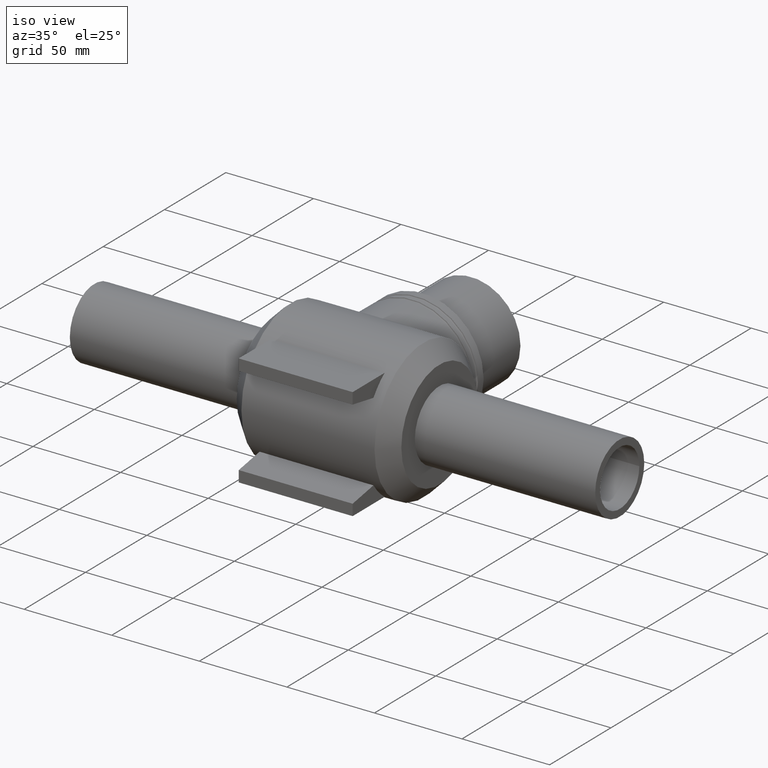
[diagram: clean part render]
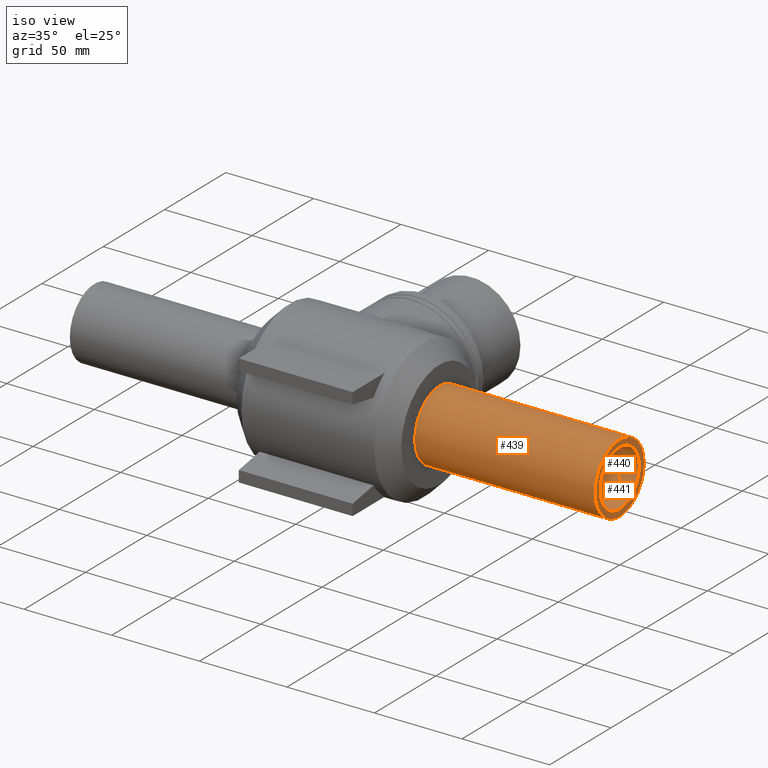
[diagram: same view with one multi-face feature highlighted, each face labeled with its STEP entity id]
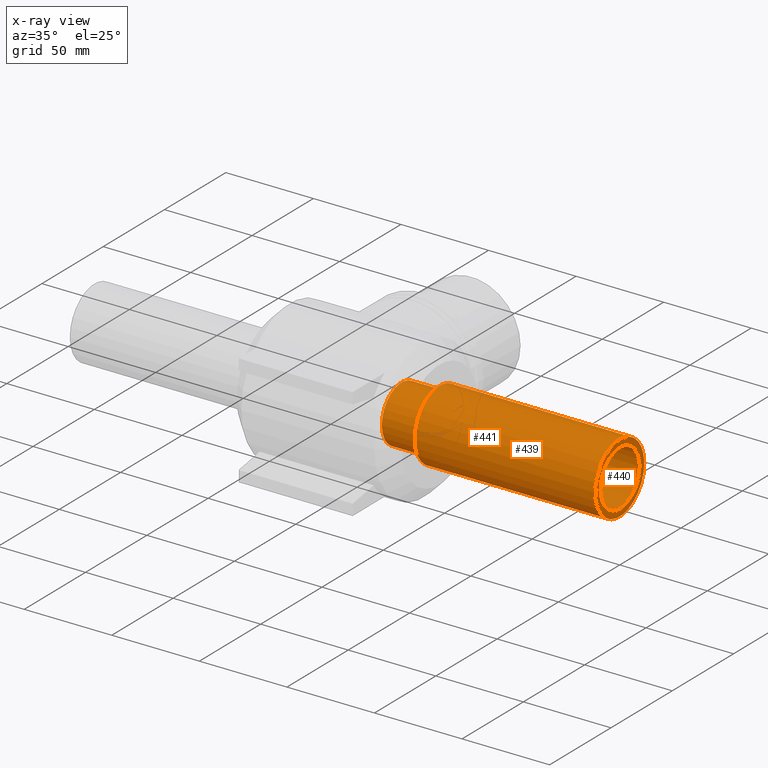
[diagram: x-ray of the same camera — body ghosted, the whole feature saturated]
A machine part, iso view. The highlighted faces form ONE feature: a stepped (counterbored) hole: 2 coaxial cylindrical walls of radii 16 -> 20 mm joined by 1 annular planar shoulder face(s). The faces share edges in the B-rep.
The next image is the same camera in x-ray: the body ghosted and the whole hole feature saturated, so the bore chain is visible through the body.
Their STEP definitions:
[1] entity #439 (Cylinder):
#95=FACE_BOUND('',#188,.T.);
#108=CYLINDRICAL_SURFACE('',#493,20.);
#138=FACE_OUTER_BOUND('',#187,.T.);
#187=EDGE_LOOP('',(#398));
#188=EDGE_LOOP('',(#399));
#222=CIRCLE('',#492,20.);
#223=CIRCLE('',#494,20.);
#261=VERTEX_POINT('',#965);
#262=VERTEX_POINT('',#968);
#309=EDGE_CURVE('',#261,#261,#222,.T.);
#310=EDGE_CURVE('',#262,#262,#223,.T.);
#398=ORIENTED_EDGE('',*,*,#310,.F.);
#399=ORIENTED_EDGE('',*,*,#309,.T.);
#439=ADVANCED_FACE('',(#138,#95),#108,.T.);
#492=AXIS2_PLACEMENT_3D('',#966,#616,#617);
#493=AXIS2_PLACEMENT_3D('',#967,#618,#619);
#494=AXIS2_PLACEMENT_3D('',#969,#620,#621);
#616=DIRECTION('center_axis',(1.,0.,0.));
#617=DIRECTION('ref_axis',(0.,0.,-1.));
#618=DIRECTION('center_axis',(1.,0.,0.));
#619=DIRECTION('ref_axis',(0.,1.,0.));
#620=DIRECTION('center_axis',(1.,0.,0.));
#621=DIRECTION('ref_axis',(0.,0.,-1.));
#965=CARTESIAN_POINT('',(47.,20.,0.));
#966=CARTESIAN_POINT('Origin',(47.,0.,0.));
#967=CARTESIAN_POINT('Origin',(98.5,0.,0.));
#968=CARTESIAN_POINT('',(150.,20.,0.));
#969=CARTESIAN_POINT('Origin',(150.,0.,0.));
[2] entity #441 (Cylinder):
#97=FACE_BOUND('',#192,.T.);
#109=CYLINDRICAL_SURFACE('',#497,16.);
#140=FACE_OUTER_BOUND('',#191,.T.);
#191=EDGE_LOOP('',(#402));
#192=EDGE_LOOP('',(#403));
#224=CIRCLE('',#496,16.);
#225=CIRCLE('',#498,16.);
#263=VERTEX_POINT('',#971);
#264=VERTEX_POINT('',#974);
#311=EDGE_CURVE('',#263,#263,#224,.T.);
#312=EDGE_CURVE('',#264,#264,#225,.T.);
#402=ORIENTED_EDGE('',*,*,#312,.F.);
#403=ORIENTED_EDGE('',*,*,#311,.T.);
#441=ADVANCED_FACE('',(#140,#97),#109,.F.);
#496=AXIS2_PLACEMENT_3D('',#972,#624,#625);
#497=AXIS2_PLACEMENT_3D('',#973,#626,#627);
#498=AXIS2_PLACEMENT_3D('',#975,#628,#629);
#624=DIRECTION('center_axis',(1.,0.,0.));
#625=DIRECTION('ref_axis',(0.,0.,-1.));
#626=DIRECTION('center_axis',(1.,0.,0.));
#627=DIRECTION('ref_axis',(0.,1.,0.));
#628=DIRECTION('center_axis',(1.,0.,0.));
#629=DIRECTION('ref_axis',(0.,0.,-1.));
#971=CARTESIAN_POINT('',(150.,16.,0.));
#972=CARTESIAN_POINT('Origin',(150.,0.,0.));
#973=CARTESIAN_POINT('Origin',(87.6885775404495,0.,0.));
#974=CARTESIAN_POINT('',(25.3771550808991,16.,0.));
#975=CARTESIAN_POINT('Origin',(25.377155080899,0.,0.));
[3] entity #440 (Plane):
#32=PLANE('',#495);
#96=FACE_BOUND('',#190,.T.);
#139=FACE_OUTER_BOUND('',#189,.T.);
#189=EDGE_LOOP('',(#400));
#190=EDGE_LOOP('',(#401));
#223=CIRCLE('',#494,20.);
#224=CIRCLE('',#496,16.);
#262=VERTEX_POINT('',#968);
#263=VERTEX_POINT('',#971);
#310=EDGE_CURVE('',#262,#262,#223,.T.);
#311=EDGE_CURVE('',#263,#263,#224,.T.);
#400=ORIENTED_EDGE('',*,*,#310,.T.);
#401=ORIENTED_EDGE('',*,*,#311,.F.);
#440=ADVANCED_FACE('',(#139,#96),#32,.T.);
#494=AXIS2_PLACEMENT_3D('',#969,#620,#621);
#495=AXIS2_PLACEMENT_3D('',#970,#622,#623);
#496=AXIS2_PLACEMENT_3D('',#972,#624,#625);
#620=DIRECTION('center_axis',(1.,0.,0.));
#621=DIRECTION('ref_axis',(0.,0.,-1.));
#622=DIRECTION('center_axis',(1.,0.,0.));
#623=DIRECTION('ref_axis',(0.,0.,-1.));
#624=DIRECTION('center_axis',(1.,0.,0.));
#625=DIRECTION('ref_axis',(0.,0.,-1.));
#968=CARTESIAN_POINT('',(150.,20.,0.));
#969=CARTESIAN_POINT('Origin',(150.,0.,0.));
#970=CARTESIAN_POINT('Origin',(150.,16.,0.));
#971=CARTESIAN_POINT('',(150.,16.,0.));
#972=CARTESIAN_POINT('Origin',(150.,0.,0.));